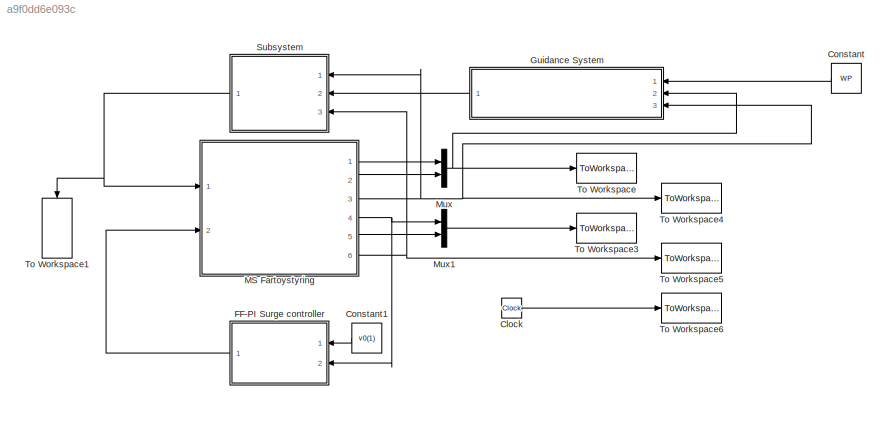
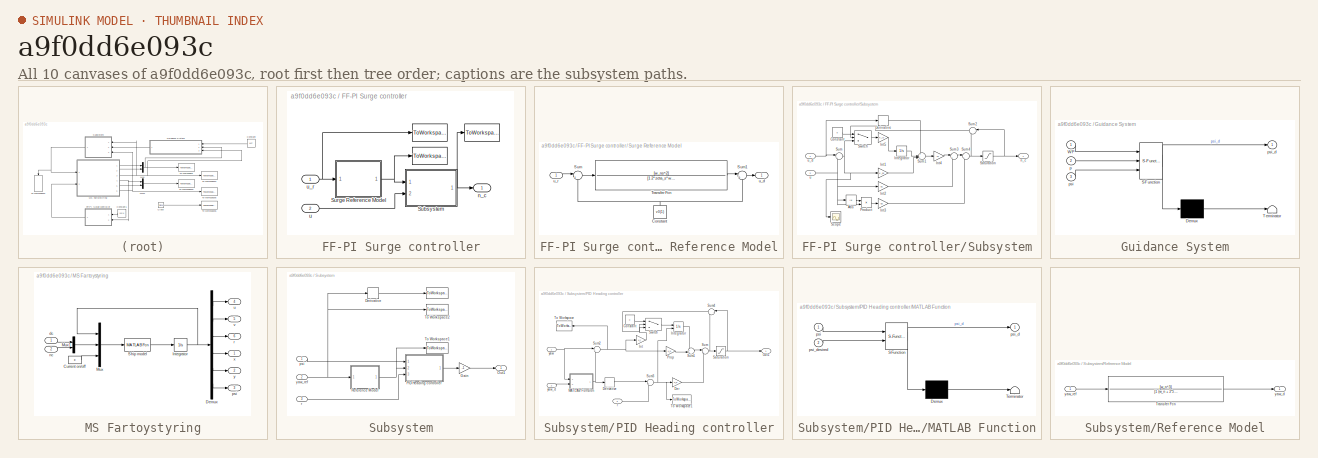
[diagram: thumbnail index - all 10 canvases of the model, root first then tree order]
MODEL slx_a9f0dd6e093c
KIND model
CONFIG AbsTol = auto
CONFIG FixedStep = auto
CONFIG MaxStep = auto
CONFIG MinStep = auto
CONFIG RelTol = 1e-3
CONFIG SampleTimeConstraint = Unconstrained
CONFIG Solver = ode45
CONFIG SolverMode = Auto
CONFIG SolverName = ode45
CONFIG StartTime = tstart
CONFIG StopTime = tstop
BLOCK [Clock] Clock
BLOCK [Constant] Constant
  Value = WP
BLOCK [Constant] Constant1
  Value = v0(1)
BLOCK [SubSystem] FF-PI Surge controller
  Ports = [2, 1]
  RequestExecContextInheritance = off
  Variant = off
BLOCK [ToWorkspace] FF-PI Surge controller/ 
  FixptAsFi = on
  MaxDataPoints = inf
  Ports = [1]
  SampleTime = tsamp
  VariableName = n_c
BLOCK [ToWorkspace] FF-PI Surge controller/      
  FixptAsFi = on
  MaxDataPoints = inf
  Ports = [1]
  SampleTime = tsamp
  VariableName = u_d
BLOCK [ToWorkspace] FF-PI Surge controller/        
  FixptAsFi = on
  MaxDataPoints = inf
  Ports = [1]
  SampleTime = tsamp
  VariableName = u_r
BLOCK [SubSystem] FF-PI Surge controller/ Surge Reference Model
  Ports = [1, 1]
  RequestExecContextInheritance = off
  Variant = off
BLOCK [Constant] FF-PI Surge controller/ Surge Reference Model/Constant
  Value = v0(1)
BLOCK [Sum] FF-PI Surge controller/ Surge Reference Model/Sum
  IconShape = round
  InputSameDT = off
  Inputs = |+-
  OutDataTypeStr = Inherit: Inherit via internal rule
  Ports = [2, 1]
  SaturateOnIntegerOverflow = off
BLOCK [Sum] FF-PI Surge controller/ Surge Reference Model/Sum1
  IconShape = round
  InputSameDT = off
  Inputs = |++
  OutDataTypeStr = Inherit: Inherit via internal rule
  Ports = [2, 1]
  SaturateOnIntegerOverflow = off
BLOCK [TransferFcn] FF-PI Surge controller/ Surge Reference Model/Transfer Fcn
  Denominator = [1 2*zeta_s*w_ns w_ns^2]
  Numerator = [w_ns^2]
BLOCK [Outport] FF-PI Surge controller/ Surge Reference Model/u_d
  IconDisplay = Port number
BLOCK [Inport] FF-PI Surge controller/ Surge Reference Model/u_r
  IconDisplay = Port number
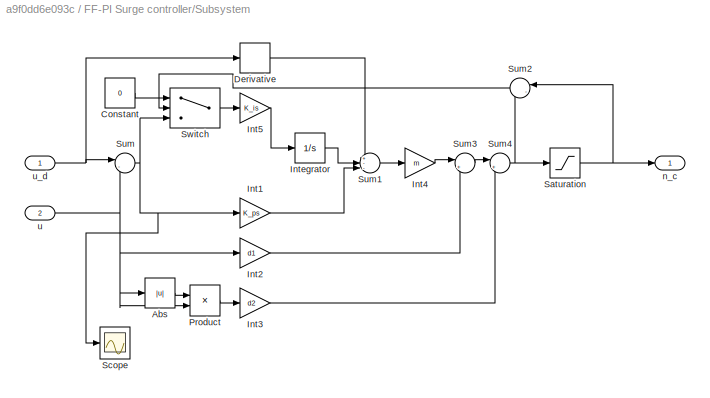
BLOCK [SubSystem] FF-PI Surge controller/Subsystem
  Ports = [2, 1]
  RequestExecContextInheritance = off
  Variant = off
BLOCK [Abs] FF-PI Surge controller/Subsystem/Abs
  SaturateOnIntegerOverflow = off
BLOCK [Constant] FF-PI Surge controller/Subsystem/Constant
  Value = 0
BLOCK [Derivative] FF-PI Surge controller/Subsystem/Derivative
BLOCK [Gain] FF-PI Surge controller/Subsystem/Int1
  Gain = K_ps
  OutDataTypeStr = Inherit: Inherit via internal rule
  ParamDataTypeStr = Inherit: Inherit via internal rule
  SaturateOnIntegerOverflow = off
BLOCK [Gain] FF-PI Surge controller/Subsystem/Int2
  Gain = d1
  OutDataTypeStr = Inherit: Inherit via internal rule
  ParamDataTypeStr = Inherit: Inherit via internal rule
  SaturateOnIntegerOverflow = off
BLOCK [Gain] FF-PI Surge controller/Subsystem/Int3
  Gain = d2
  OutDataTypeStr = Inherit: Inherit via internal rule
  ParamDataTypeStr = Inherit: Inherit via internal rule
  SaturateOnIntegerOverflow = off
BLOCK [Gain] FF-PI Surge controller/Subsystem/Int4
  Gain = m
  OutDataTypeStr = Inherit: Inherit via internal rule
  ParamDataTypeStr = Inherit: Inherit via internal rule
  SaturateOnIntegerOverflow = off
BLOCK [Gain] FF-PI Surge controller/Subsystem/Int5
  Gain = K_is
  OutDataTypeStr = Inherit: Inherit via internal rule
  ParamDataTypeStr = Inherit: Inherit via internal rule
  SaturateOnIntegerOverflow = off
BLOCK [Integrator] FF-PI Surge controller/Subsystem/Integrator
  Ports = [1, 1]
BLOCK [Product] FF-PI Surge controller/Subsystem/Product
  InputSameDT = off
  OutDataTypeStr = Inherit: Inherit via internal rule
  Ports = [2, 1]
  RndMeth = Floor
  SaturateOnIntegerOverflow = off
BLOCK [Saturate] FF-PI Surge controller/Subsystem/Saturation
  InputPortMap = u0
  LowerLimit = -85*2*pi/60
  Ports = [1, 1]
  UpperLimit = 85*2*pi/60
  ZeroCross = off
BLOCK [Scope] FF-PI Surge controller/Subsystem/Scope
  Ports = [1]
  ScopeSpecificationString = Simulink.scopes.TimeScopeBlockCfg('CurrentConfiguration', extmgr.ConfigurationSet(extmgr.Configuration('Core','General UI',true),extmgr.Configuration('Core','Source UI',true),extmgr.Configuration('Sources','WiredSimulink',true),extmgr.Configuration('Visuals','Time Domain',true,'SerializedDisplays',{struct('MinYLimReal','-3.37506','MaxYLimReal','0.37563','YLabelReal','','MinYLimMag','0.00000','MaxY...<+1323ch>
BLOCK [Sum] FF-PI Surge controller/Subsystem/Sum
  IconShape = round
  InputSameDT = off
  Inputs = |-+
  OutDataTypeStr = Inherit: Inherit via internal rule
  Ports = [2, 1]
  SaturateOnIntegerOverflow = off
BLOCK [Sum] FF-PI Surge controller/Subsystem/Sum1
  IconShape = round
  InputSameDT = off
  Inputs = +--|
  OutDataTypeStr = Inherit: Inherit via internal rule
  Ports = [3, 1]
  SaturateOnIntegerOverflow = off
BLOCK [Sum] FF-PI Surge controller/Subsystem/Sum2
  IconShape = round
  InputSameDT = off
  Inputs = |-+
  OutDataTypeStr = Inherit: Inherit via internal rule
  Ports = [2, 1]
  SaturateOnIntegerOverflow = off
BLOCK [Sum] FF-PI Surge controller/Subsystem/Sum3
  IconShape = round
  InputSameDT = off
  Inputs = |++
  OutDataTypeStr = Inherit: Inherit via internal rule
  Ports = [2, 1]
  SaturateOnIntegerOverflow = off
BLOCK [Sum] FF-PI Surge controller/Subsystem/Sum4
  IconShape = round
  InputSameDT = off
  Inputs = |++
  OutDataTypeStr = Inherit: Inherit via internal rule
  Ports = [2, 1]
  SaturateOnIntegerOverflow = off
BLOCK [Switch] FF-PI Surge controller/Subsystem/Switch
  Criteria = u2 ~= 0
  InputSameDT = off
  SaturateOnIntegerOverflow = off
  ZeroCross = off
BLOCK [Outport] FF-PI Surge controller/Subsystem/n_c
  IconDisplay = Port number
BLOCK [Inport] FF-PI Surge controller/Subsystem/u
  IconDisplay = Port number
  Port = 2
BLOCK [Inport] FF-PI Surge controller/Subsystem/u_d
  IconDisplay = Port number
BLOCK [Outport] FF-PI Surge controller/n_c
  IconDisplay = Port number
BLOCK [Inport] FF-PI Surge controller/u
  IconDisplay = Port number
  Port = 2
BLOCK [Inport] FF-PI Surge controller/u_r
  IconDisplay = Port number
BLOCK [SubSystem] Guidance System
  ErrorFcn = Stateflow.Translate.translate
  PermitHierarchicalResolution = ExplicitOnly
  Ports = [3, 1]
  RequestExecContextInheritance = off
  SFBlockType = MATLAB Function
  TreatAsAtomicUnit = on
  Variant = off
BLOCK [Demux] Guidance System/ Demux 
  Outputs = 1
  Ports = [1, 1]
BLOCK [S-Function] Guidance System/ SFunction 
  EnableBusSupport = on
  FunctionName = sf_sfun
  PortCounts = [3 2]
  Ports = [3, 2]
  SFunctionDeploymentMode = off
  Tag = Stateflow S-Function MSFartoystyring 2
BLOCK [Terminator] Guidance System/ Terminator 
BLOCK [Inport] Guidance System/WP
  IconDisplay = Port number
BLOCK [Inport] Guidance System/p
  IconDisplay = Port number
  Port = 2
BLOCK [Inport] Guidance System/psi
  IconDisplay = Port number
  Port = 3
BLOCK [Outport] Guidance System/psi_d
  IconDisplay = Port number
BLOCK [SubSystem] MS Fartoystyring
  Ports = [2, 6]
  RequestExecContextInheritance = off
  Variant = off
BLOCK [Constant] MS Fartoystyring/Current on//off
  Value = c
BLOCK [Demux] MS Fartoystyring/Demux
  DisplayOption = bar
  Outputs = 6
  Ports = [1, 6]
BLOCK [Integrator] MS Fartoystyring/Integrator
  InitialCondition = [u0 v0 r0 x0 y0 psi0]'
  Ports = [1, 1]
BLOCK [Mux] MS Fartoystyring/Mux
  DisplayOption = bar
  Inputs = 3
  Ports = [3, 1]
BLOCK [Mux] MS Fartoystyring/Mux1
  DisplayOption = bar
  Inputs = 2
  Ports = [2, 1]
BLOCK [MATLABFcn] MS Fartoystyring/Ship model
  MATLABFcn = msfartoystyring(u(1:6), u(7:8), u(9))
  OutputDimensions = 6
  Ports = [1, 1]
BLOCK [Inport] MS Fartoystyring/dc
  IconDisplay = Port number
BLOCK [Inport] MS Fartoystyring/nc
  IconDisplay = Port number
  Port = 2
BLOCK [Outport] MS Fartoystyring/psi
  IconDisplay = Port number
  Port = 3
BLOCK [Outport] MS Fartoystyring/r
  IconDisplay = Port number
  Port = 6
BLOCK [Outport] MS Fartoystyring/u
  IconDisplay = Port number
  Port = 4
BLOCK [Outport] MS Fartoystyring/v
  IconDisplay = Port number
  Port = 5
BLOCK [Outport] MS Fartoystyring/x
  IconDisplay = Port number
BLOCK [Outport] MS Fartoystyring/y
  IconDisplay = Port number
  Port = 2
BLOCK [Mux] Mux
  DisplayOption = bar
  Inputs = 2
  Ports = [2, 1]
BLOCK [Mux] Mux1
  DisplayOption = bar
  Inputs = 2
  Ports = [2, 1]
BLOCK [SubSystem] Subsystem
  Ports = [3, 1]
  RequestExecContextInheritance = off
  Variant = off
BLOCK [ToWorkspace] Subsystem/ 
  FixptAsFi = on
  MaxDataPoints = inf
  Ports = [1]
  SampleTime = tsamp
  VariableName = r_d
BLOCK [Derivative] Subsystem/Derivative
BLOCK [Gain] Subsystem/Gain
  Gain = -1
  OutDataTypeStr = Inherit: Inherit via internal rule
  ParamDataTypeStr = Inherit: Inherit via internal rule
  SaturateOnIntegerOverflow = off
BLOCK [Outport] Subsystem/Out1
  IconDisplay = Port number
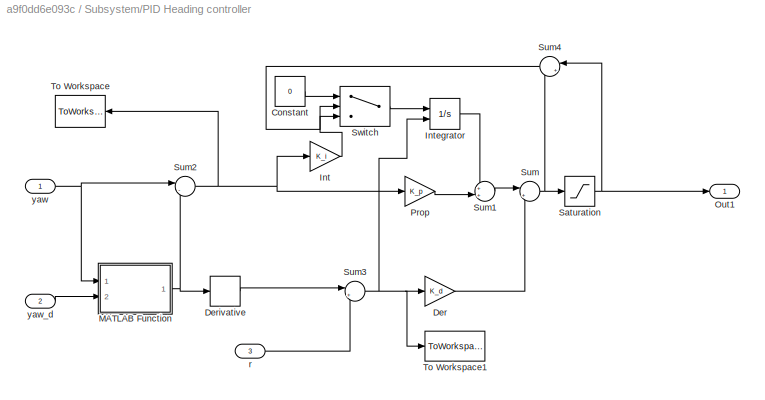
BLOCK [SubSystem] Subsystem/PID Heading controller
  Ports = [3, 1]
  RequestExecContextInheritance = off
  Variant = off
BLOCK [Constant] Subsystem/PID Heading controller/Constant
  Value = 0
BLOCK [Gain] Subsystem/PID Heading controller/Der
  Gain = K_d
  OutDataTypeStr = Inherit: Inherit via internal rule
  ParamDataTypeStr = Inherit: Inherit via internal rule
  SaturateOnIntegerOverflow = off
BLOCK [Derivative] Subsystem/PID Heading controller/Derivative
BLOCK [Gain] Subsystem/PID Heading controller/Int
  Gain = K_i
  OutDataTypeStr = Inherit: Inherit via internal rule
  ParamDataTypeStr = Inherit: Inherit via internal rule
  SaturateOnIntegerOverflow = off
BLOCK [Integrator] Subsystem/PID Heading controller/Integrator
  ExternalReset = either
  Ports = [2, 1]
BLOCK [SubSystem] Subsystem/PID Heading controller/MATLAB Function
  ErrorFcn = Stateflow.Translate.translate
  PermitHierarchicalResolution = ExplicitOnly
  Ports = [2, 1]
  RequestExecContextInheritance = off
  SFBlockType = MATLAB Function
  TreatAsAtomicUnit = on
  Variant = off
BLOCK [Demux] Subsystem/PID Heading controller/MATLAB Function/ Demux 
  Outputs = 1
  Ports = [1, 1]
BLOCK [S-Function] Subsystem/PID Heading controller/MATLAB Function/ SFunction 
  EnableBusSupport = on
  FunctionName = sf_sfun
  PortCounts = [2 2]
  Ports = [2, 2]
  SFunctionDeploymentMode = off
  Tag = Stateflow S-Function MSFartoystyring 1
BLOCK [Terminator] Subsystem/PID Heading controller/MATLAB Function/ Terminator 
BLOCK [Inport] Subsystem/PID Heading controller/MATLAB Function/psi
  IconDisplay = Port number
BLOCK [Outport] Subsystem/PID Heading controller/MATLAB Function/psi_d
  IconDisplay = Port number
BLOCK [Inport] Subsystem/PID Heading controller/MATLAB Function/psi_desired
  IconDisplay = Port number
  Port = 2
BLOCK [Outport] Subsystem/PID Heading controller/Out1
  IconDisplay = Port number
BLOCK [Gain] Subsystem/PID Heading controller/Prop
  Gain = K_p
  OutDataTypeStr = Inherit: Inherit via internal rule
  ParamDataTypeStr = Inherit: Inherit via internal rule
  SaturateOnIntegerOverflow = off
BLOCK [Saturate] Subsystem/PID Heading controller/Saturation
  InputPortMap = u0
  Ports = [1, 1]
BLOCK [Sum] Subsystem/PID Heading controller/Sum
  IconShape = round
  InputSameDT = off
  Inputs = |++
  OutDataTypeStr = Inherit: Inherit via internal rule
  Ports = [2, 1]
  SaturateOnIntegerOverflow = off
BLOCK [Sum] Subsystem/PID Heading controller/Sum1
  IconShape = round
  InputSameDT = off
  Inputs = ++|
  OutDataTypeStr = Inherit: Inherit via internal rule
  Ports = [2, 1]
  SaturateOnIntegerOverflow = off
BLOCK [Sum] Subsystem/PID Heading controller/Sum2
  IconShape = round
  InputSameDT = off
  Inputs = |-+
  OutDataTypeStr = Inherit: Inherit via internal rule
  Ports = [2, 1]
  SaturateOnIntegerOverflow = off
BLOCK [Sum] Subsystem/PID Heading controller/Sum3
  IconShape = round
  InputSameDT = off
  Inputs = |+-
  OutDataTypeStr = Inherit: Inherit via internal rule
  Ports = [2, 1]
  SaturateOnIntegerOverflow = off
BLOCK [Sum] Subsystem/PID Heading controller/Sum4
  IconShape = round
  InputSameDT = off
  Inputs = |+-
  OutDataTypeStr = Inherit: Inherit via internal rule
  Ports = [2, 1]
  SaturateOnIntegerOverflow = off
BLOCK [Switch] Subsystem/PID Heading controller/Switch
  Criteria = u2 ~= 0
  InputSameDT = off
  SaturateOnIntegerOverflow = off
BLOCK [ToWorkspace] Subsystem/PID Heading controller/To Workspace
  FixptAsFi = on
  MaxDataPoints = inf
  Ports = [1]
  SampleTime = tsamp
  VariableName = psi_tilde
BLOCK [ToWorkspace] Subsystem/PID Heading controller/To Workspace1
  FixptAsFi = on
  MaxDataPoints = inf
  Ports = [1]
  SampleTime = tsamp
  VariableName = r_tilde
BLOCK [Inport] Subsystem/PID Heading controller/r
  IconDisplay = Port number
  Port = 3
BLOCK [Inport] Subsystem/PID Heading controller/yaw
  IconDisplay = Port number
BLOCK [Inport] Subsystem/PID Heading controller/yaw_d
  IconDisplay = Port number
  Port = 2
BLOCK [SubSystem] Subsystem/Reference Model
  Ports = [1, 1]
  RequestExecContextInheritance = off
  Variant = off
BLOCK [TransferFcn] Subsystem/Reference Model/Transfer Fcn
  Denominator = [1 (w_n + 2*zeta*w_n) (w_n^2 + 2*zeta*w_n^2) w_n^3]
  Numerator = [w_n^3]
BLOCK [Outport] Subsystem/Reference Model/yaw_d
  IconDisplay = Port number
BLOCK [Inport] Subsystem/Reference Model/yaw_ref
  IconDisplay = Port number
BLOCK [ToWorkspace] Subsystem/To Workspace1
  MaxDataPoints = inf
  Ports = [1]
  SampleTime = tsamp
  VariableName = psi_d
BLOCK [ToWorkspace] Subsystem/To Workspace2
  MaxDataPoints = inf
  Ports = [1]
  SampleTime = tsamp
  VariableName = psi_r
BLOCK [Inport] Subsystem/psi
  IconDisplay = Port number
BLOCK [Inport] Subsystem/r
  IconDisplay = Port number
  Port = 3
BLOCK [Inport] Subsystem/yaw_ref
  IconDisplay = Port number
  Port = 2
BLOCK [ToWorkspace] To Workspace
  MaxDataPoints = inf
  Ports = [1]
  SampleTime = tsamp
  VariableName = p
BLOCK [ToWorkspace] To Workspace1
  MaxDataPoints = inf
  Ports = [1]
  SampleTime = tsamp
  VariableName = d_c
BLOCK [ToWorkspace] To Workspace3
  MaxDataPoints = inf
  Ports = [1]
  SampleTime = tsamp
  VariableName = v
BLOCK [ToWorkspace] To Workspace4
  MaxDataPoints = inf
  Ports = [1]
  SampleTime = tsamp
  VariableName = psi
BLOCK [ToWorkspace] To Workspace5
  MaxDataPoints = inf
  Ports = [1]
  SampleTime = tsamp
  VariableName = r
BLOCK [ToWorkspace] To Workspace6
  MaxDataPoints = inf
  Ports = [1]
  SampleTime = tsamp
  VariableName = t
LINE Clock:1 -> To Workspace6:1
LINE Constant1:1 -> FF-PI Surge controller:1
LINE Constant:1 -> Guidance System:1
NET FF-PI Surge controller/ Surge Reference Model/Constant:1 -> FF-PI Surge controller/ Surge Reference Model/Sum1:2, FF-PI Surge controller/ Surge Reference Model/Sum:2
LINE FF-PI Surge controller/ Surge Reference Model/Sum1:1 -> FF-PI Surge controller/ Surge Reference Model/u_d:1
LINE FF-PI Surge controller/ Surge Reference Model/Sum:1 -> FF-PI Surge controller/ Surge Reference Model/Transfer Fcn:1
LINE FF-PI Surge controller/ Surge Reference Model/Transfer Fcn:1 -> FF-PI Surge controller/ Surge Reference Model/Sum1:1
LINE FF-PI Surge controller/ Surge Reference Model/u_r:1 -> FF-PI Surge controller/ Surge Reference Model/Sum:1
NET FF-PI Surge controller/ Surge Reference Model:1 -> FF-PI Surge controller/      :1, FF-PI Surge controller/Subsystem:1
LINE FF-PI Surge controller/Subsystem/Abs:1 -> FF-PI Surge controller/Subsystem/Product:1
LINE FF-PI Surge controller/Subsystem/Constant:1 -> FF-PI Surge controller/Subsystem/Switch:1
LINE FF-PI Surge controller/Subsystem/Derivative:1 -> FF-PI Surge controller/Subsystem/Sum1:1
LINE FF-PI Surge controller/Subsystem/Int1:1 -> FF-PI Surge controller/Subsystem/Sum1:3
LINE FF-PI Surge controller/Subsystem/Int2:1 -> FF-PI Surge controller/Subsystem/Sum3:2
LINE FF-PI Surge controller/Subsystem/Int3:1 -> FF-PI Surge controller/Subsystem/Sum4:2
LINE FF-PI Surge controller/Subsystem/Int4:1 -> FF-PI Surge controller/Subsystem/Sum3:1
LINE FF-PI Surge controller/Subsystem/Int5:1 -> FF-PI Surge controller/Subsystem/Integrator:1
LINE FF-PI Surge controller/Subsystem/Integrator:1 -> FF-PI Surge controller/Subsystem/Sum1:2
LINE FF-PI Surge controller/Subsystem/Product:1 -> FF-PI Surge controller/Subsystem/Int3:1
NET FF-PI Surge controller/Subsystem/Saturation:1 -> FF-PI Surge controller/Subsystem/Sum2:1, FF-PI Surge controller/Subsystem/n_c:1
LINE FF-PI Surge controller/Subsystem/Sum1:1 -> FF-PI Surge controller/Subsystem/Int4:1
LINE FF-PI Surge controller/Subsystem/Sum2:1 -> FF-PI Surge controller/Subsystem/Switch:2
LINE FF-PI Surge controller/Subsystem/Sum3:1 -> FF-PI Surge controller/Subsystem/Sum4:1
NET FF-PI Surge controller/Subsystem/Sum4:1 -> FF-PI Surge controller/Subsystem/Saturation:1, FF-PI Surge controller/Subsystem/Sum2:2
NET FF-PI Surge controller/Subsystem/Sum:1 -> FF-PI Surge controller/Subsystem/Int1:1, FF-PI Surge controller/Subsystem/Scope:1, FF-PI Surge controller/Subsystem/Switch:3
LINE FF-PI Surge controller/Subsystem/Switch:1 -> FF-PI Surge controller/Subsystem/Int5:1
NET FF-PI Surge controller/Subsystem/u:1 -> FF-PI Surge controller/Subsystem/Abs:1, FF-PI Surge controller/Subsystem/Int2:1, FF-PI Surge controller/Subsystem/Product:2, FF-PI Surge controller/Subsystem/Sum:2
NET FF-PI Surge controller/Subsystem/u_d:1 -> FF-PI Surge controller/Subsystem/Derivative:1, FF-PI Surge controller/Subsystem/Sum:1
NET FF-PI Surge controller/Subsystem:1 -> FF-PI Surge controller/ :1, FF-PI Surge controller/n_c:1
LINE FF-PI Surge controller/u:1 -> FF-PI Surge controller/Subsystem:2
NET FF-PI Surge controller/u_r:1 -> FF-PI Surge controller/        :1, FF-PI Surge controller/ Surge Reference Model:1
LINE FF-PI Surge controller:1 -> MS Fartoystyring:2
LINE Guidance System:1 -> Subsystem:2
LINE MS Fartoystyring/Current on//off:1 -> MS Fartoystyring/Mux:3
LINE MS Fartoystyring/Demux:1 -> MS Fartoystyring/u:1
LINE MS Fartoystyring/Demux:2 -> MS Fartoystyring/v:1
LINE MS Fartoystyring/Demux:3 -> MS Fartoystyring/r:1
LINE MS Fartoystyring/Demux:4 -> MS Fartoystyring/x:1
LINE MS Fartoystyring/Demux:5 -> MS Fartoystyring/y:1
LINE MS Fartoystyring/Demux:6 -> MS Fartoystyring/psi:1
NET MS Fartoystyring/Integrator:1 -> MS Fartoystyring/Demux:1, MS Fartoystyring/Mux:1
LINE MS Fartoystyring/Mux1:1 -> MS Fartoystyring/Mux:2
LINE MS Fartoystyring/Mux:1 -> MS Fartoystyring/Ship model:1
LINE MS Fartoystyring/Ship model:1 -> MS Fartoystyring/Integrator:1
LINE MS Fartoystyring/dc:1 -> MS Fartoystyring/Mux1:1
LINE MS Fartoystyring/nc:1 -> MS Fartoystyring/Mux1:2
LINE MS Fartoystyring:1 -> Mux:1
LINE MS Fartoystyring:2 -> Mux:2
NET MS Fartoystyring:3 -> Guidance System:3, Subsystem:1, To Workspace4:1
NET MS Fartoystyring:4 -> FF-PI Surge controller:2, Mux1:1
LINE MS Fartoystyring:5 -> Mux1:2
NET MS Fartoystyring:6 -> Subsystem:3, To Workspace5:1
LINE Mux1:1 -> To Workspace3:1
NET Mux:1 -> Guidance System:2, To Workspace:1
LINE Subsystem/Derivative:1 -> Subsystem/ :1
LINE Subsystem/Gain:1 -> Subsystem/Out1:1
LINE Subsystem/PID Heading controller/Constant:1 -> Subsystem/PID Heading controller/Switch:1
LINE Subsystem/PID Heading controller/Der:1 -> Subsystem/PID Heading controller/Sum:2
LINE Subsystem/PID Heading controller/Derivative:1 -> Subsystem/PID Heading controller/Sum3:1
LINE Subsystem/PID Heading controller/Int:1 -> Subsystem/PID Heading controller/Switch:3
LINE Subsystem/PID Heading controller/Integrator:1 -> Subsystem/PID Heading controller/Sum1:1
NET Subsystem/PID Heading controller/MATLAB Function:1 -> Subsystem/PID Heading controller/Derivative:1, Subsystem/PID Heading controller/Sum2:2
LINE Subsystem/PID Heading controller/Prop:1 -> Subsystem/PID Heading controller/Sum1:2
NET Subsystem/PID Heading controller/Saturation:1 -> Subsystem/PID Heading controller/Out1:1, Subsystem/PID Heading controller/Sum4:1
LINE Subsystem/PID Heading controller/Sum1:1 -> Subsystem/PID Heading controller/Sum:1
NET Subsystem/PID Heading controller/Sum2:1 -> Subsystem/PID Heading controller/Int:1, Subsystem/PID Heading controller/Prop:1, Subsystem/PID Heading controller/To Workspace:1
NET Subsystem/PID Heading controller/Sum3:1 -> Subsystem/PID Heading controller/Der:1, Subsystem/PID Heading controller/Integrator:2, Subsystem/PID Heading controller/To Workspace1:1
LINE Subsystem/PID Heading controller/Sum4:1 -> Subsystem/PID Heading controller/Switch:2
NET Subsystem/PID Heading controller/Sum:1 -> Subsystem/PID Heading controller/Saturation:1, Subsystem/PID Heading controller/Sum4:2
LINE Subsystem/PID Heading controller/Switch:1 -> Subsystem/PID Heading controller/Integrator:1
LINE Subsystem/PID Heading controller/r:1 -> Subsystem/PID Heading controller/Sum3:2
NET Subsystem/PID Heading controller/yaw:1 -> Subsystem/PID Heading controller/MATLAB Function:1, Subsystem/PID Heading controller/Sum2:1
LINE Subsystem/PID Heading controller/yaw_d:1 -> Subsystem/PID Heading controller/MATLAB Function:2
LINE Subsystem/PID Heading controller:1 -> Subsystem/Gain:1
LINE Subsystem/Reference Model/Transfer Fcn:1 -> Subsystem/Reference Model/yaw_d:1
LINE Subsystem/Reference Model/yaw_ref:1 -> Subsystem/Reference Model/Transfer Fcn:1
NET Subsystem/Reference Model:1 -> Subsystem/PID Heading controller:2, Subsystem/To Workspace1:1
LINE Subsystem/psi:1 -> Subsystem/PID Heading controller:1
LINE Subsystem/r:1 -> Subsystem/PID Heading controller:3
NET Subsystem/yaw_ref:1 -> Subsystem/Derivative:1, Subsystem/Reference Model:1, Subsystem/To Workspace2:1
NET Subsystem:1 -> MS Fartoystyring:1, To Workspace1:1
note: NET lines group one-source signal fan-out (src -> all destinations, sorted); 1:1 wires keep LINE
CHART Subsystem/PID Heading controller/MATLAB Function states=1 transitions=1
  STATE_LABEL 'eML_blk_kernel()'
  STATE_LABEL 'SCRIPT:\nfunction psi_d = fcn(psi,psi_desired)\n\n% The relative error shall never be higher than +/-180 degrees\n\npsi_pi = mod(psi+pi,2*pi)-pi;                  % Map 2 +/-pi\npsi_tilde = psi_desired-psi_pi;                % Angle difference [-2pi,pi]\npsi_tilde = mod(psi_tilde+pi,2*pi)-pi;         % Map 2 +/-pi\n\npsi_d = psi+psi_tilde;\n    '
CHART Guidance System states=1 transitions=1
  STATE_LABEL 'eML_blk_kernel()'
  STATE_LABEL 'SCRIPT:\nfunction psi_d  = guidancesystem(WP, p, psi )\n%GUIDANCESYSTEM A LOS based guidance system\n\n% Keep track of current waypoint\npersistent k;\n\n% Acceptance circle radius\nLpp = 304.8;\nR = 2*Lpp;\n\nif isempty(k)\n    k = 1; % Set next waypoint to first one. Current is init pos\nend\n   \n% Extract current waypoint and next.\nxn = WP(1,k+1); % next WP x-pos\nyn = WP(2,k+1); % next WP y-post\n\nxk = WP(1,k...<+757ch>'
